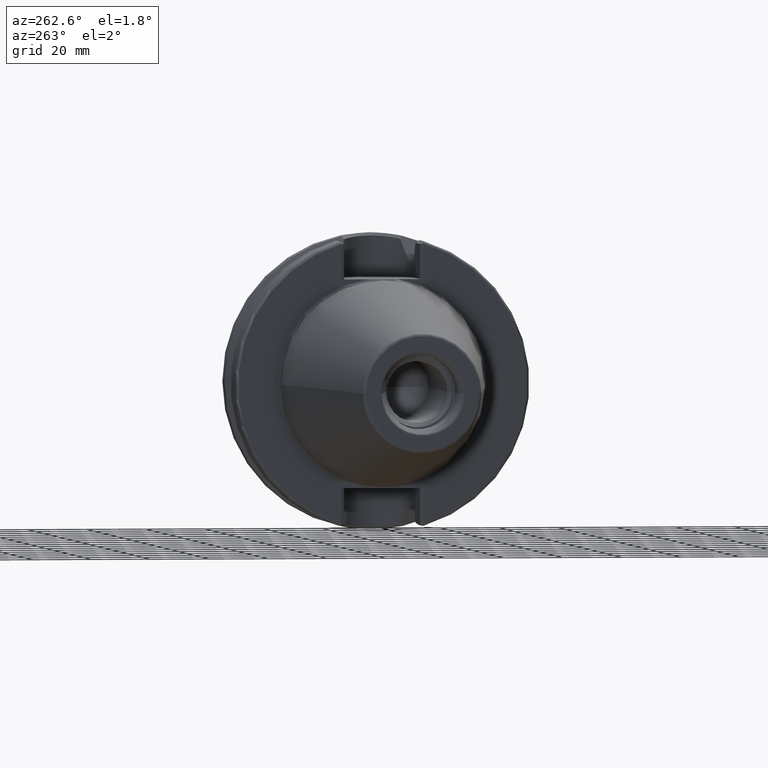
[diagram: clean part render]
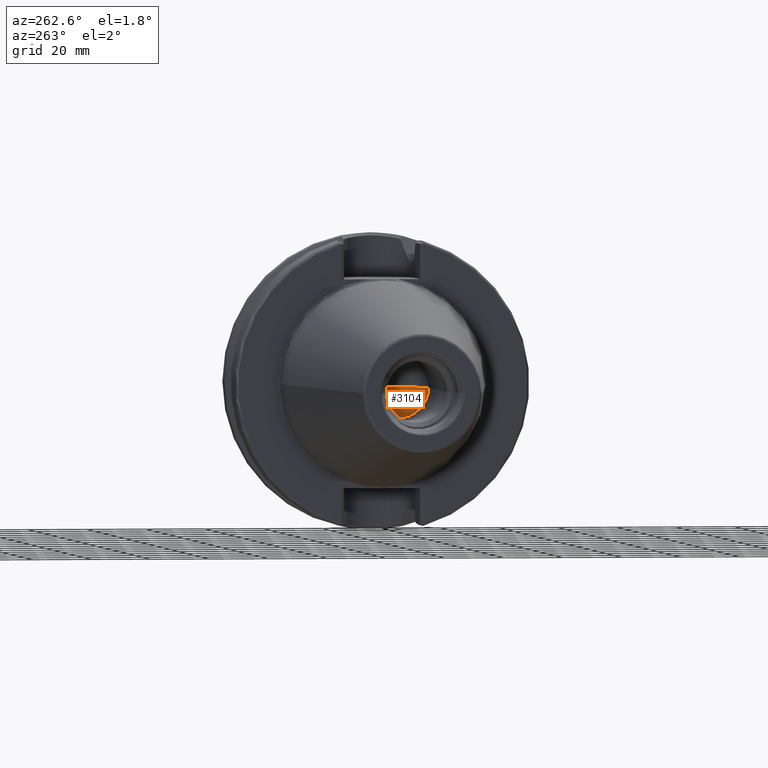
[diagram: same view with one face highlighted and labeled with its STEP entity id]
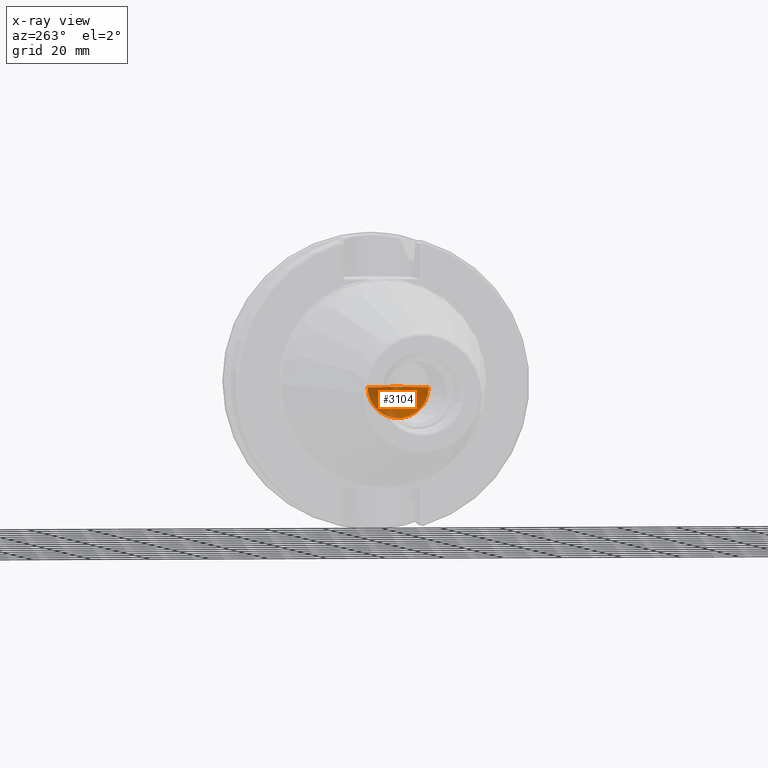
[diagram: x-ray of the same camera — body ghosted, the highlighted face saturated]
A machine part, auxiliary view. The second image highlights one B-rep face of the part: STEP entity #3104.
The next image is the same camera in x-ray: the body ghosted, the highlighted face saturated — about 33% of this face is hidden behind the body in this view.
In plain terms, the highlighted conical surface has half-angle 59 deg.
Its self-contained STEP definition (entity closure, byte-faithful):
#1146=CARTESIAN_POINT('',(-3.78E1,0.E0,0.E0));
#1147=DIRECTION('',(-1.E0,0.E0,0.E0));
#1148=DIRECTION('',(0.E0,1.E0,0.E0));
#1149=AXIS2_PLACEMENT_3D('',#1146,#1147,#1148);
#1160=DIRECTION('',(-5.150380749101E-1,8.571673007021E-1,0.E0));
#1161=VECTOR('',#1160,1.210382149611E1);
#1162=CARTESIAN_POINT('',(-3.156607107759E1,0.E0,0.E0));
#1163=LINE('',#1162,#1161);
#1164=DIRECTION('',(-5.150380749101E-1,-8.571673007021E-1,0.E0));
#1165=VECTOR('',#1164,1.210382149611E1);
#1166=CARTESIAN_POINT('',(-3.156607107759E1,0.E0,0.E0));
#1167=LINE('',#1166,#1165);
#1252=CARTESIAN_POINT('',(-3.156607107759E1,0.E0,0.E0));
#1253=CARTESIAN_POINT('',(-3.78E1,1.0375E1,0.E0));
#1254=VERTEX_POINT('',#1252);
#1255=VERTEX_POINT('',#1253);
#1276=CARTESIAN_POINT('',(-3.78E1,-1.0375E1,0.E0));
#1277=VERTEX_POINT('',#1276);
#3094=CARTESIAN_POINT('',(-3.468303553879E1,0.E0,0.E0));
#3095=DIRECTION('',(-1.E0,0.E0,0.E0));
#3096=DIRECTION('',(0.E0,1.E0,0.E0));
#3097=AXIS2_PLACEMENT_3D('',#3094,#3095,#3096);
#3098=CONICAL_SURFACE('',#3097,5.1875E0,5.9E1);
#3099=ORIENTED_EDGE('',*,*,#3086,.F.);
#3100=ORIENTED_EDGE('',*,*,#3089,.T.);
#3101=ORIENTED_EDGE('',*,*,#3060,.F.);
#3102=EDGE_LOOP('',(#3099,#3100,#3101));
#3103=FACE_OUTER_BOUND('',#3102,.F.);
#3104=ADVANCED_FACE('',(#3103),#3098,.F.);
#1150=CIRCLE('',#1149,1.0375E1);
#3060=EDGE_CURVE('',#1255,#1277,#1150,.T.);
#3086=EDGE_CURVE('',#1254,#1255,#1163,.T.);
#3089=EDGE_CURVE('',#1254,#1277,#1167,.T.);